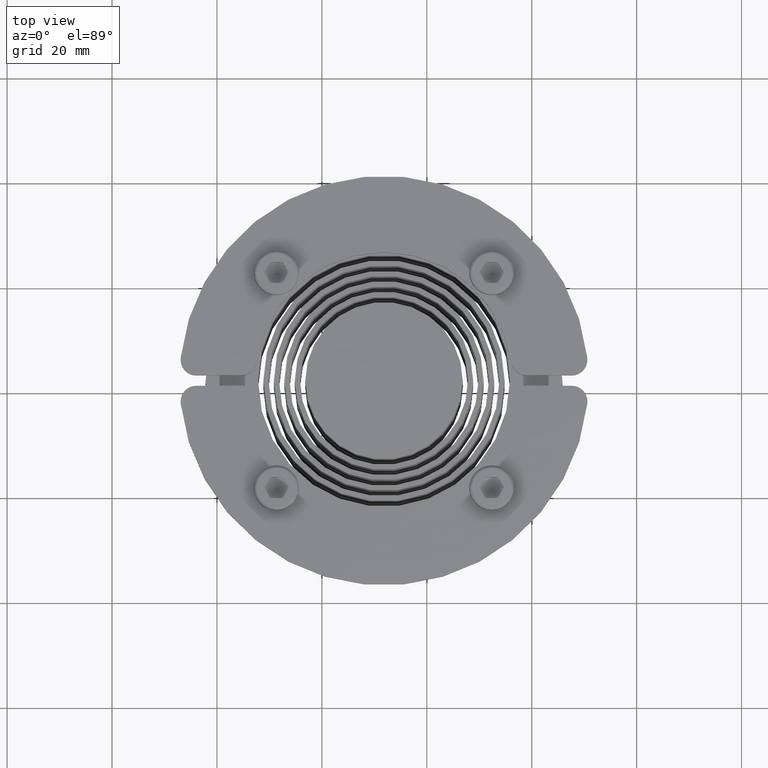
[diagram: clean part render]
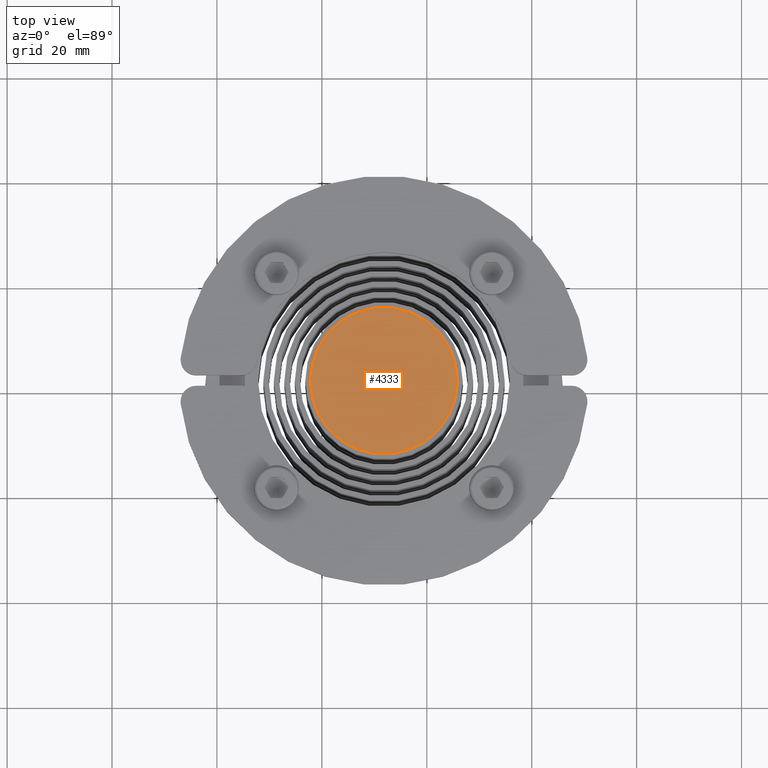
[diagram: same view with one face highlighted and labeled with its STEP entity id]
A machine part, top view. The second image highlights one B-rep face of the part: STEP entity #4333.
In plain terms, the highlighted planar face has unit normal (0, 0, 1).
Its self-contained STEP definition (entity closure, byte-faithful):
#4253=CARTESIAN_POINT('',(14.0,0.0,-37.500000000000000));
#4254=VERTEX_POINT('',#4253);
#4263=CARTESIAN_POINT('',(-14.0,-1.714449E-015,-37.500000000000000));
#4264=VERTEX_POINT('',#4263);
#4265=CARTESIAN_POINT('',(0.0,0.0,-37.500000000000000));
#4266=DIRECTION('',(0.0,0.0,1.0));
#4267=DIRECTION('',(1.0,0.0,0.0));
#4268=AXIS2_PLACEMENT_3D('',#4265,#4266,#4267);
#4269=CIRCLE('',#4268,14.0);
#4270=EDGE_CURVE('',#4264,#4254,#4269,.T.);
#4304=CARTESIAN_POINT('',(0.0,0.0,-37.500000000000000));
#4305=DIRECTION('',(0.0,0.0,1.0));
#4306=DIRECTION('',(1.0,0.0,0.0));
#4307=AXIS2_PLACEMENT_3D('',#4304,#4305,#4306);
#4308=CIRCLE('',#4307,14.0);
#4309=EDGE_CURVE('',#4254,#4264,#4308,.T.);
#4324=CARTESIAN_POINT('',(0.0,0.0,-37.500000000000000));
#4325=DIRECTION('',(0.0,0.0,1.0));
#4326=DIRECTION('',(1.0,0.0,0.0));
#4327=AXIS2_PLACEMENT_3D('',#4324,#4325,#4326);
#4328=PLANE('',#4327);
#4329=ORIENTED_EDGE('',*,*,#4309,.T.);
#4330=ORIENTED_EDGE('',*,*,#4270,.T.);
#4331=EDGE_LOOP('',(#4329,#4330));
#4332=FACE_OUTER_BOUND('',#4331,.T.);
#4333=ADVANCED_FACE('',(#4332),#4328,.T.);